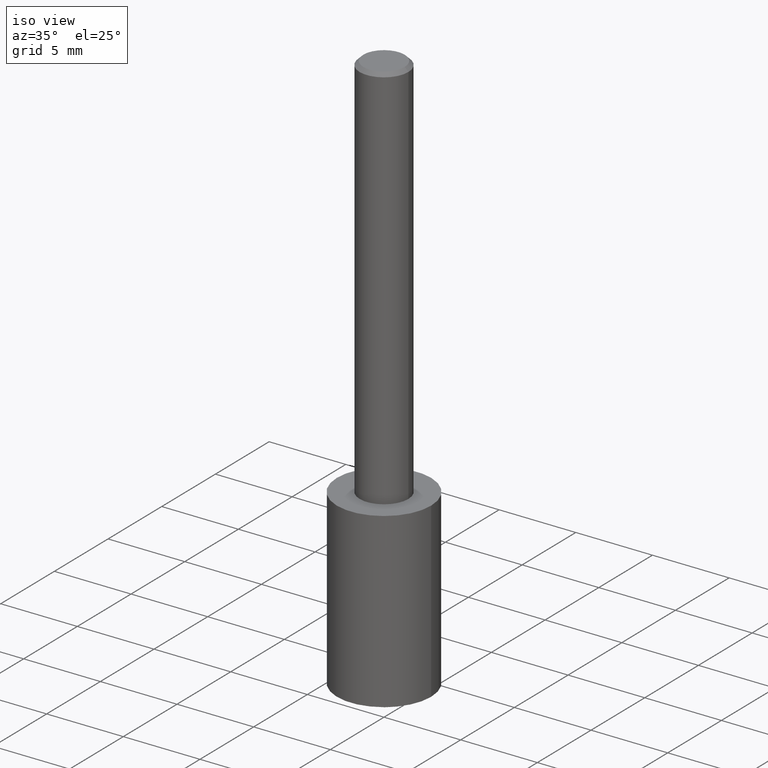
[diagram: clean part render]
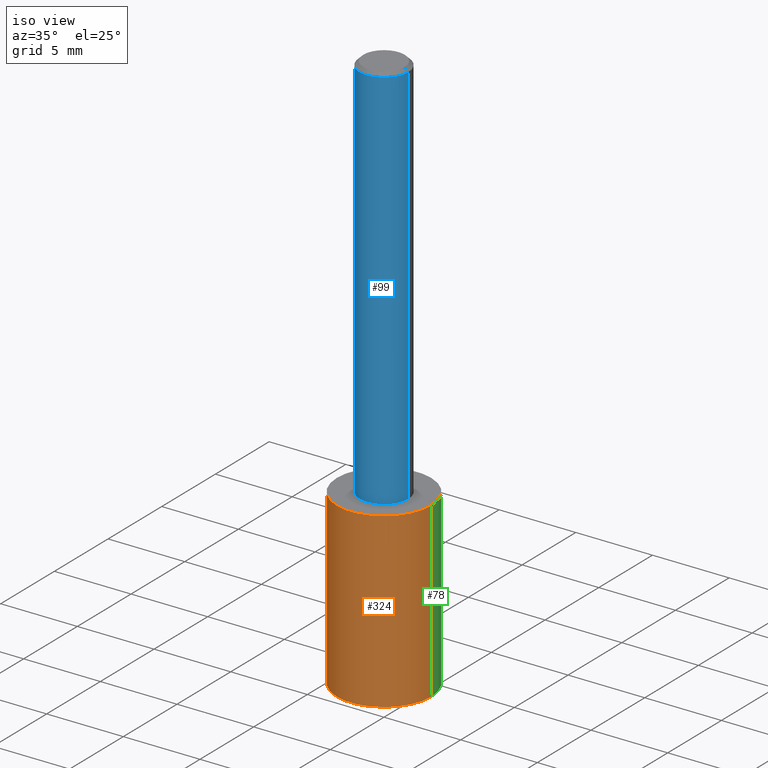
[diagram: same view with three faces highlighted in distinct colors, each labeled with its STEP entity id]
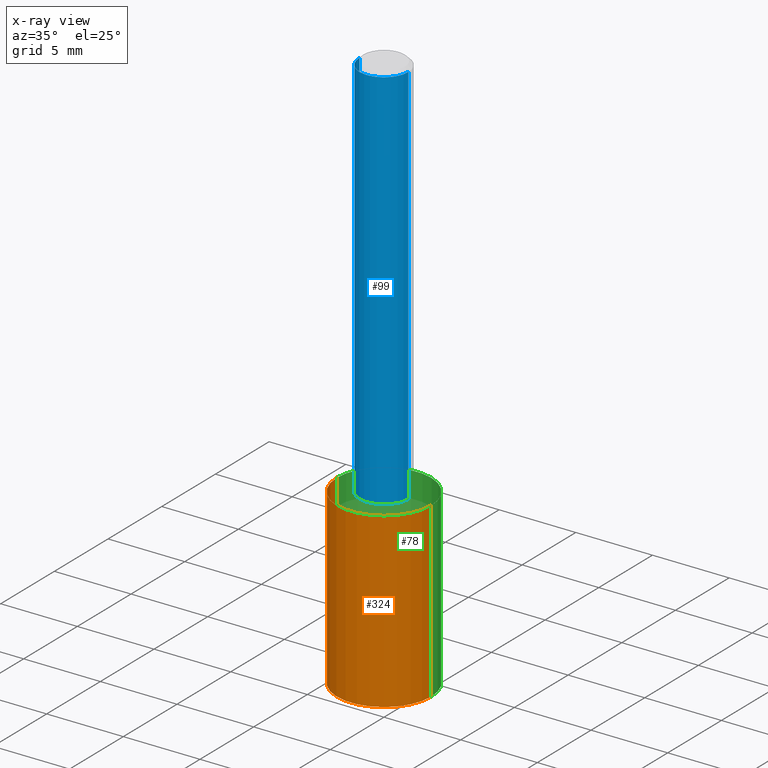
[diagram: x-ray of the same camera — body ghosted, the three highlighted faces saturated]
A machine part, iso view with three faces highlighted in distinct colors.
The next image is the same camera in x-ray (body ghosted, the three faces saturated) — at least one of them is partly hidden behind the body in this view.
Their STEP definitions:

[orange] entity #324 — the highlighted cylindrical surface (partial cylindrical patch) has radius 3.0734 mm, axis along (-0, 0, 1).
#9 = CARTESIAN_POINT ( 'NONE',  ( -0.1210000000000000103, -2.631724628573425172E-15, -1.000000000000000222 ) ) ;
#11 = ORIENTED_EDGE ( 'NONE', *, *, #252, .F. ) ;
#12 = LINE ( 'NONE', #9, #55 ) ;
#23 = VERTEX_POINT ( 'NONE', #28 ) ;
#28 = CARTESIAN_POINT ( 'NONE',  ( 0.1210000000000000103, -5.885159849385211106E-15, -1.443576773363245636 ) ) ;
#32 = CYLINDRICAL_SURFACE ( 'NONE', #263, 0.1210000000000000103 ) ;
#35 = VERTEX_POINT ( 'NONE', #258 ) ;
#45 = ORIENTED_EDGE ( 'NONE', *, *, #309, .F. ) ;
#47 = AXIS2_PLACEMENT_3D ( 'NONE', #150, #253, #167 ) ;
#55 = VECTOR ( 'NONE', #218, 39.37007874015748143 ) ;
#63 = EDGE_LOOP ( 'NONE', ( #45, #154, #141, #11 ) ) ;
#83 = AXIS2_PLACEMENT_3D ( 'NONE', #123, #289, #136 ) ;
#84 = CIRCLE ( 'NONE', #83, 0.1210000000000000103 ) ;
#92 = EDGE_CURVE ( 'NONE', #23, #35, #178, .T. ) ;
#101 = CARTESIAN_POINT ( 'NONE',  ( -0.1210000000000000103, -4.180464655115451414E-15, -1.443576773363245636 ) ) ;
#106 = DIRECTION ( 'NONE',  ( 1.000000000000000000, -6.982962677686263555E-15, 0.000000000000000000 ) ) ;
#123 = CARTESIAN_POINT ( 'NONE',  ( 3.530221968593207660E-29, -5.040221365385172613E-15, -1.443576773363245636 ) ) ;
#133 = CARTESIAN_POINT ( 'NONE',  ( 2.445468806185137438E-29, -3.491481338843146371E-15, -1.000000000000000222 ) ) ;
#136 = DIRECTION ( 'NONE',  ( 1.000000000000000000, -6.982962677686268288E-15, 0.000000000000000000 ) ) ;
#141 = ORIENTED_EDGE ( 'NONE', *, *, #92, .T. ) ;
#150 = CARTESIAN_POINT ( 'NONE',  ( 2.445468806185136877E-29, -3.491481338843145977E-15, -1.000000000000000222 ) ) ;
#154 = ORIENTED_EDGE ( 'NONE', *, *, #267, .T. ) ;
#165 = VECTOR ( 'NONE', #301, 39.37007874015748143 ) ;
#167 = DIRECTION ( 'NONE',  ( 1.000000000000000000, -6.982962677686268288E-15, 0.000000000000000000 ) ) ;
#176 = VERTEX_POINT ( 'NONE', #269 ) ;
#178 = LINE ( 'NONE', #197, #165 ) ;
#192 = DIRECTION ( 'NONE',  ( -2.445468806185136597E-29, 3.491481338843145583E-15, 1.000000000000000000 ) ) ;
#197 = CARTESIAN_POINT ( 'NONE',  ( 0.1210000000000000103, -4.336419822843184470E-15, -1.000000000000000222 ) ) ;
#214 = FACE_OUTER_BOUND ( 'NONE', #63, .T. ) ;
#218 = DIRECTION ( 'NONE',  ( -2.445468806185136877E-29, 3.491481338843145188E-15, 1.000000000000000000 ) ) ;
#222 = CIRCLE ( 'NONE', #47, 0.1210000000000000103 ) ;
#252 = EDGE_CURVE ( 'NONE', #176, #35, #222, .T. ) ;
#253 = DIRECTION ( 'NONE',  ( -2.445468806185136597E-29, 3.491481338843145583E-15, 1.000000000000000000 ) ) ;
#258 = CARTESIAN_POINT ( 'NONE',  ( 0.1210000000000000103, -4.336419822843184470E-15, -1.000000000000000222 ) ) ;
#263 = AXIS2_PLACEMENT_3D ( 'NONE', #133, #192, #106 ) ;
#267 = EDGE_CURVE ( 'NONE', #329, #23, #84, .T. ) ;
#269 = CARTESIAN_POINT ( 'NONE',  ( -0.1210000000000000103, -3.406094641844438096E-15, -1.000000000000000222 ) ) ;
#289 = DIRECTION ( 'NONE',  ( -2.445468806185136597E-29, 3.491481338843145583E-15, 1.000000000000000000 ) ) ;
#301 = DIRECTION ( 'NONE',  ( -2.445468806185136877E-29, 3.491481338843145188E-15, 1.000000000000000000 ) ) ;
#309 = EDGE_CURVE ( 'NONE', #329, #176, #12, .T. ) ;
#324 = ADVANCED_FACE ( 'NONE', ( #214 ), #32, .T. ) ;
#329 = VERTEX_POINT ( 'NONE', #101 ) ;

[blue] entity #99 — the highlighted cylindrical surface (edge-blend (fillet) strip) has radius 1.5875 mm, axis along (-0, 0, 1).
#6 = CIRCLE ( 'NONE', #194, 0.06250000000000000000 ) ;
#13 = DIRECTION ( 'NONE',  ( -2.445468806185136597E-29, 3.491481338843145583E-15, 1.000000000000000000 ) ) ;
#15 = DIRECTION ( 'NONE',  ( 1.000000000000000000, -6.982962677686266711E-15, 4.876176775795935793E-29 ) ) ;
#21 = VERTEX_POINT ( 'NONE', #72 ) ;
#25 = ORIENTED_EDGE ( 'NONE', *, *, #302, .T. ) ;
#36 = DIRECTION ( 'NONE',  ( -2.445468806185136597E-29, 3.491481338843145583E-15, 1.000000000000000000 ) ) ;
#43 = DIRECTION ( 'NONE',  ( 1.000000000000000000, -6.982962677686266711E-15, 0.000000000000000000 ) ) ;
#54 = AXIS2_PLACEMENT_3D ( 'NONE', #108, #13, #15 ) ;
#58 = EDGE_LOOP ( 'NONE', ( #272, #299, #25, #225 ) ) ;
#71 = CARTESIAN_POINT ( 'NONE',  ( 0.06250000000000012490, -3.927916506198539224E-15, -1.000000000000000222 ) ) ;
#72 = CARTESIAN_POINT ( 'NONE',  ( -0.06250000000000012490, -1.318017778347335489E-15, -1.000000000000000222 ) ) ;
#91 = CARTESIAN_POINT ( 'NONE',  ( -0.06250000000000006939, 4.440892098500631092E-16, -3.074334431409319267E-30 ) ) ;
#99 = ADVANCED_FACE ( 'NONE', ( #120 ), #249, .T. ) ;
#104 = CIRCLE ( 'NONE', #185, 0.06250000000000012490 ) ;
#108 = CARTESIAN_POINT ( 'NONE',  ( 0.000000000000000000, 0.000000000000000000, 0.000000000000000000 ) ) ;
#120 = FACE_OUTER_BOUND ( 'NONE', #58, .T. ) ;
#121 = VERTEX_POINT ( 'NONE', #323 ) ;
#146 = CARTESIAN_POINT ( 'NONE',  ( 0.06250000000000000000, -4.691678049070463404E-16, -0.009375000000000062103 ) ) ;
#153 = EDGE_CURVE ( 'NONE', #21, #186, #104, .T. ) ;
#155 = VERTEX_POINT ( 'NONE', #146 ) ;
#181 = DIRECTION ( 'NONE',  ( -2.445468806185136597E-29, 3.491481338843145583E-15, 1.000000000000000000 ) ) ;
#185 = AXIS2_PLACEMENT_3D ( 'NONE', #295, #36, #198 ) ;
#186 = VERTEX_POINT ( 'NONE', #71 ) ;
#194 = AXIS2_PLACEMENT_3D ( 'NONE', #306, #181, #43 ) ;
#198 = DIRECTION ( 'NONE',  ( 1.000000000000000000, -6.982962677686264344E-15, 0.000000000000000000 ) ) ;
#204 = DIRECTION ( 'NONE',  ( -2.445468806185136877E-29, 3.491481338843145188E-15, 1.000000000000000000 ) ) ;
#224 = EDGE_CURVE ( 'NONE', #21, #121, #335, .T. ) ;
#225 = ORIENTED_EDGE ( 'NONE', *, *, #239, .F. ) ;
#239 = EDGE_CURVE ( 'NONE', #121, #155, #6, .T. ) ;
#242 = DIRECTION ( 'NONE',  ( -2.445468806185136877E-29, 3.491481338843145188E-15, 1.000000000000000000 ) ) ;
#244 = LINE ( 'NONE', #322, #292 ) ;
#249 = CYLINDRICAL_SURFACE ( 'NONE', #54, 0.06250000000000006939 ) ;
#254 = VECTOR ( 'NONE', #204, 39.37007874015748143 ) ;
#272 = ORIENTED_EDGE ( 'NONE', *, *, #224, .F. ) ;
#292 = VECTOR ( 'NONE', #242, 39.37007874015748143 ) ;
#295 = CARTESIAN_POINT ( 'NONE',  ( 2.445468806185137438E-29, -3.491481338843146371E-15, -1.000000000000000222 ) ) ;
#299 = ORIENTED_EDGE ( 'NONE', *, *, #153, .T. ) ;
#302 = EDGE_CURVE ( 'NONE', #186, #155, #244, .T. ) ;
#306 = CARTESIAN_POINT ( 'NONE',  ( 2.292627005798580623E-31, -3.273263755165470801E-17, -0.009375000000000062103 ) ) ;
#322 = CARTESIAN_POINT ( 'NONE',  ( 0.06250000000000006939, -4.364351673553921624E-16, 3.047610484872463374E-30 ) ) ;
#323 = CARTESIAN_POINT ( 'NONE',  ( -0.06250000000000000000, -1.318017778347336672E-15, -0.009375000000000062103 ) ) ;
#335 = LINE ( 'NONE', #91, #254 ) ;

[green] entity #78 — the highlighted cylindrical surface (partial cylindrical patch) has radius 3.0734 mm, axis along (-0, 0, 1).
#9 = CARTESIAN_POINT ( 'NONE',  ( -0.1210000000000000103, -2.631724628573425172E-15, -1.000000000000000222 ) ) ;
#12 = LINE ( 'NONE', #9, #55 ) ;
#23 = VERTEX_POINT ( 'NONE', #28 ) ;
#26 = CIRCLE ( 'NONE', #262, 0.1210000000000000103 ) ;
#28 = CARTESIAN_POINT ( 'NONE',  ( 0.1210000000000000103, -5.885159849385211106E-15, -1.443576773363245636 ) ) ;
#29 = AXIS2_PLACEMENT_3D ( 'NONE', #264, #318, #161 ) ;
#35 = VERTEX_POINT ( 'NONE', #258 ) ;
#53 = EDGE_CURVE ( 'NONE', #23, #329, #26, .T. ) ;
#55 = VECTOR ( 'NONE', #218, 39.37007874015748143 ) ;
#64 = CYLINDRICAL_SURFACE ( 'NONE', #326, 0.1210000000000000103 ) ;
#78 = ADVANCED_FACE ( 'NONE', ( #237 ), #64, .T. ) ;
#90 = ORIENTED_EDGE ( 'NONE', *, *, #92, .F. ) ;
#92 = EDGE_CURVE ( 'NONE', #23, #35, #178, .T. ) ;
#101 = CARTESIAN_POINT ( 'NONE',  ( -0.1210000000000000103, -4.180464655115451414E-15, -1.443576773363245636 ) ) ;
#117 = CARTESIAN_POINT ( 'NONE',  ( 3.530221968593207660E-29, -5.040221365385172613E-15, -1.443576773363245636 ) ) ;
#127 = DIRECTION ( 'NONE',  ( 1.000000000000000000, -6.982962677686268288E-15, 0.000000000000000000 ) ) ;
#151 = ORIENTED_EDGE ( 'NONE', *, *, #278, .F. ) ;
#158 = DIRECTION ( 'NONE',  ( -2.445468806185136597E-29, 3.491481338843145583E-15, 1.000000000000000000 ) ) ;
#161 = DIRECTION ( 'NONE',  ( 1.000000000000000000, -6.982962677686268288E-15, 0.000000000000000000 ) ) ;
#165 = VECTOR ( 'NONE', #301, 39.37007874015748143 ) ;
#169 = DIRECTION ( 'NONE',  ( -2.445468806185136597E-29, 3.491481338843145583E-15, 1.000000000000000000 ) ) ;
#172 = CARTESIAN_POINT ( 'NONE',  ( 2.445468806185137438E-29, -3.491481338843146371E-15, -1.000000000000000222 ) ) ;
#176 = VERTEX_POINT ( 'NONE', #269 ) ;
#178 = LINE ( 'NONE', #197, #165 ) ;
#197 = CARTESIAN_POINT ( 'NONE',  ( 0.1210000000000000103, -4.336419822843184470E-15, -1.000000000000000222 ) ) ;
#205 = ORIENTED_EDGE ( 'NONE', *, *, #309, .T. ) ;
#218 = DIRECTION ( 'NONE',  ( -2.445468806185136877E-29, 3.491481338843145188E-15, 1.000000000000000000 ) ) ;
#233 = EDGE_LOOP ( 'NONE', ( #314, #205, #151, #90 ) ) ;
#237 = FACE_OUTER_BOUND ( 'NONE', #233, .T. ) ;
#258 = CARTESIAN_POINT ( 'NONE',  ( 0.1210000000000000103, -4.336419822843184470E-15, -1.000000000000000222 ) ) ;
#262 = AXIS2_PLACEMENT_3D ( 'NONE', #117, #158, #127 ) ;
#264 = CARTESIAN_POINT ( 'NONE',  ( 2.445468806185136877E-29, -3.491481338843145977E-15, -1.000000000000000222 ) ) ;
#269 = CARTESIAN_POINT ( 'NONE',  ( -0.1210000000000000103, -3.406094641844438096E-15, -1.000000000000000222 ) ) ;
#278 = EDGE_CURVE ( 'NONE', #35, #176, #283, .T. ) ;
#283 = CIRCLE ( 'NONE', #29, 0.1210000000000000103 ) ;
#301 = DIRECTION ( 'NONE',  ( -2.445468806185136877E-29, 3.491481338843145188E-15, 1.000000000000000000 ) ) ;
#309 = EDGE_CURVE ( 'NONE', #329, #176, #12, .T. ) ;
#314 = ORIENTED_EDGE ( 'NONE', *, *, #53, .T. ) ;
#318 = DIRECTION ( 'NONE',  ( -2.445468806185136597E-29, 3.491481338843145583E-15, 1.000000000000000000 ) ) ;
#326 = AXIS2_PLACEMENT_3D ( 'NONE', #172, #169, #328 ) ;
#328 = DIRECTION ( 'NONE',  ( 1.000000000000000000, -6.982962677686263555E-15, 0.000000000000000000 ) ) ;
#329 = VERTEX_POINT ( 'NONE', #101 ) ;